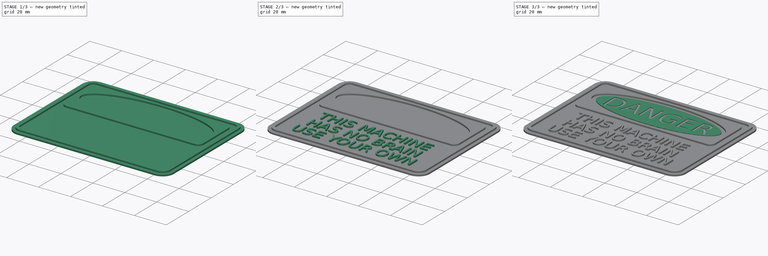
[diagram: build sequence overview — one tinted view per stage of 3, left to right]
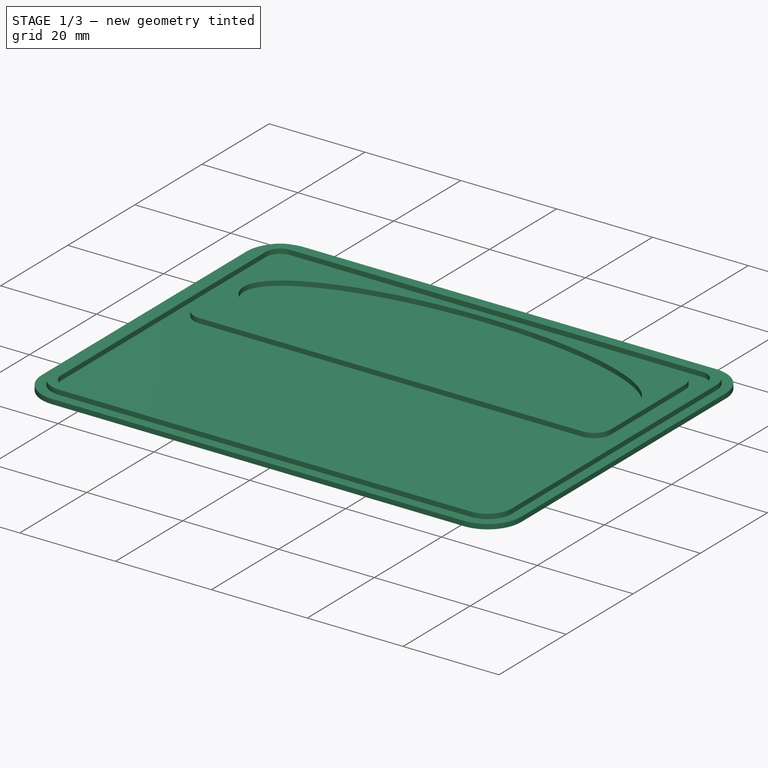
[diagram: stage 1 of 3 — iso view after this stage's code; geometry added in this stage tinted green]
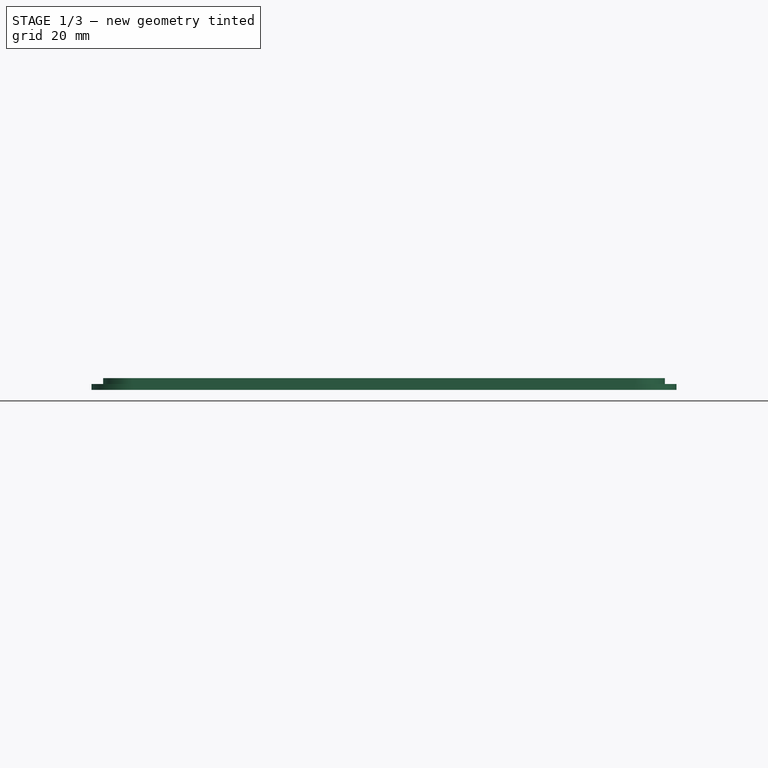
[diagram: stage 1 of 3 — front view after this stage's code; geometry added in this stage tinted green]
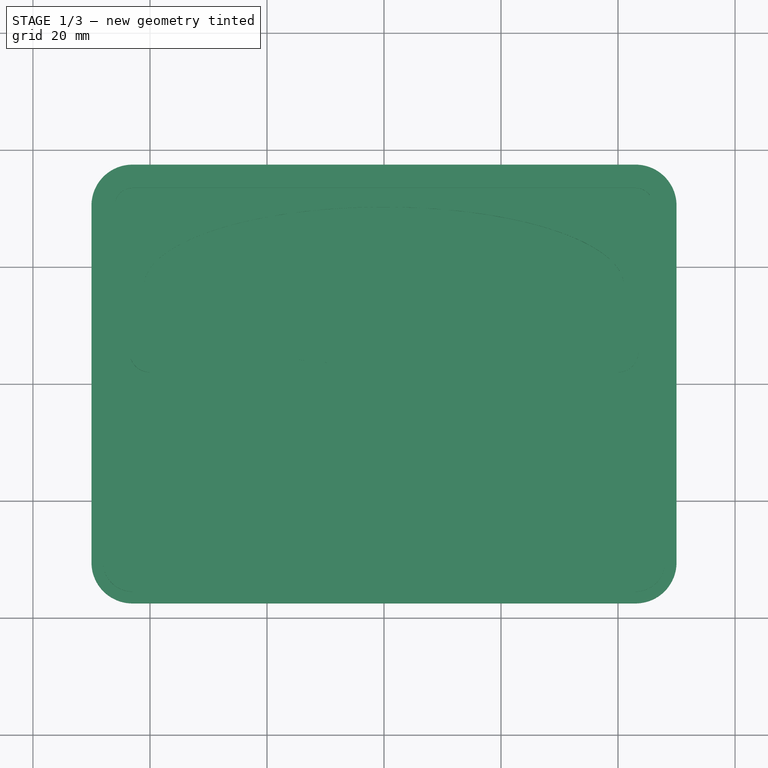
[diagram: stage 1 of 3 — top view after this stage's code; geometry added in this stage tinted green]
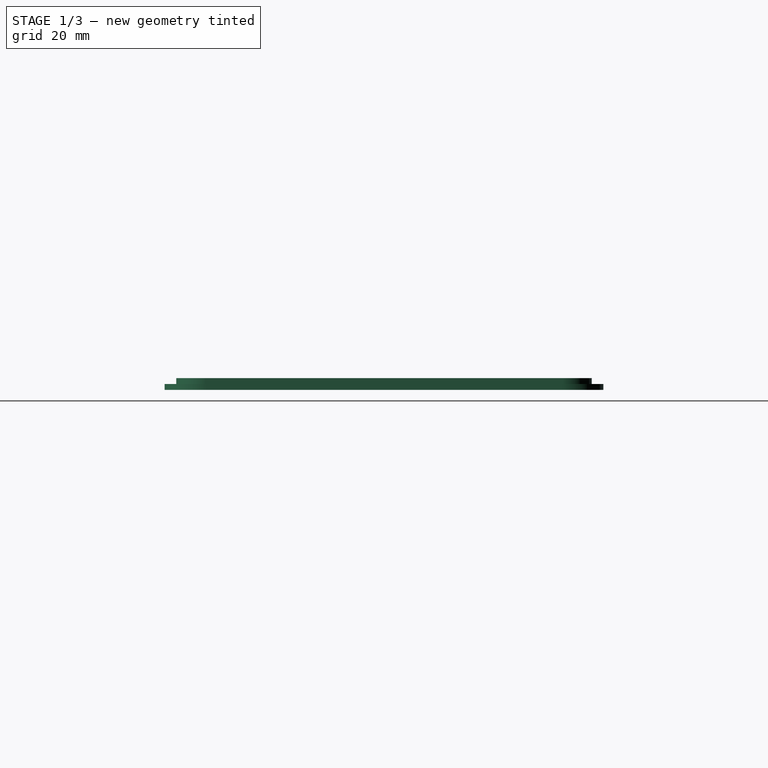
[diagram: stage 1 of 3 — right view after this stage's code; geometry added in this stage tinted green]
FCSTD DOCUMENT  (FreeCAD 1.1R)
Label: this-machine-has-no-brain
License: All rights reserved
LicenseURL: https://en.wikipedia.org/wiki/All_rights_reserved
objects: PartDesign::Pad×6, Part::Part2DObjectPython×4, Sketcher::SketchObject×3, App::Point×1, PartDesign::Pocket×1, PartDesign::Body×1
note: 32 computed .brp shape members not serialized (recipe doc carries the construction recipe); baked Part::Feature solids carry a one-line shape summary decoded from their .brp

FEATURE [App::Point] Origin001
  Role = Origin
FEATURE [Sketcher::SketchObject] Sketch
  ArcFitTolerance = 1e-06
  AttachmentSupport = -> [Origin]
  ExternalTypes = [0]
  FullyConstrained = true
  MakeInternals = false
  MapMode = 5
  sketch-geometry (12):
    g0: LineSegment StartX=-50 StartY=30.5 StartZ=0 EndX=-50 EndY=-30.5 EndZ=0
    g1: LineSegment StartX=-43 StartY=-37.5 StartZ=0 EndX=43 EndY=-37.5 EndZ=0
    g2: LineSegment StartX=50 StartY=-30.5 StartZ=0 EndX=50 EndY=30.5 EndZ=0
    g3: LineSegment StartX=43 StartY=37.5 StartZ=0 EndX=-43 EndY=37.5 EndZ=0
    g4: ArcOfCircle CenterX=-43 CenterY=30.5 CenterZ=0 NormalX=0 NormalY=0 NormalZ=1 AngleXU=0 Radius=7 StartAngle=1.5708 EndAngle=3.14159
    g5: GeomPoint [constr] X=-50 Y=37.5 Z=0
    g6: ArcOfCircle CenterX=43 CenterY=30.5 CenterZ=0 NormalX=0 NormalY=0 NormalZ=1 AngleXU=0 Radius=7 StartAngle=0 EndAngle=1.5708
    g7: GeomPoint [constr] X=50 Y=37.5 Z=0
    g8: ArcOfCircle CenterX=43 CenterY=-30.5 CenterZ=0 NormalX=0 NormalY=0 NormalZ=1 AngleXU=0 Radius=7 StartAngle=4.71239 EndAngle=6.28319
    g9: GeomPoint [constr] X=50 Y=-37.5 Z=0
    g10: ArcOfCircle CenterX=-43 CenterY=-30.5 CenterZ=0 NormalX=0 NormalY=0 NormalZ=1 AngleXU=0 Radius=7 StartAngle=3.14159 EndAngle=4.71239
    g11: GeomPoint [constr] X=-50 Y=-37.5 Z=0
  constraints (23):
    c: Symmetric(g9,g7,g-1)
    c: Symmetric(g11,g9,g-2)
    c: PointOnObject(g5,g0)
    c: PointOnObject(g5,g3)
    c: Tangent(g0,g4) = -1.5708
    c: Tangent(g3,g4) = -1.5708
    c: PointOnObject(g7,g2)
    c: PointOnObject(g7,g3)
    c: Tangent(g2,g6) = -1.5708
    c: Tangent(g3,g6) = -1.5708
    c: PointOnObject(g9,g1)
    c: Tangent(g1,g8) = -1.5708
    c: Tangent(g2,g8) = -1.5708
    c: PointOnObject(g11,g0)
    c: PointOnObject(g11,g1)
    c: Tangent(g0,g10) = -1.5708
    c: Tangent(g1,g10) = -1.5708
    c: DistanceX(g11,g9) = 100
    c: DistanceY(g11,g5) = 75
    c: DistanceY(g0,g0) = 61
    c: Symmetric(g2,g2,g-1)
    c: Symmetric(g3,g3,g-2)
    c: Symmetric(g0,g0,g-1)
FEATURE [PartDesign::Pad] Pad  label="main"
  Direction = (0,0,1)
  Length = 1
  Length2 = 10
  Profile = -> Sketch
  ReferenceAxis = -> Sketch [N_Axis]
  Refine = true
  SideType = 0
  Suppressed = false
  Type = 0
  Type2 = 0
FEATURE [Sketcher::SketchObject] Sketch001
  ArcFitTolerance = 1e-06
  AttachmentSupport = -> [Origin]
  ExternalTypes = [0]
  FullyConstrained = true
  MakeInternals = false
  MapMode = 5
  sketch-geometry (41):
    g0: LineSegment StartX=-46 StartY=30.5 StartZ=0 EndX=-46 EndY=-30.5 EndZ=0
    g1: LineSegment StartX=-43 StartY=-33.5 StartZ=0 EndX=43 EndY=-33.5 EndZ=0
    g2: LineSegment StartX=46 StartY=-30.5 StartZ=0 EndX=46 EndY=30.5 EndZ=0
    g3: LineSegment StartX=43 StartY=33.5 StartZ=0 EndX=-43 EndY=33.5 EndZ=0
    g4: ArcOfCircle CenterX=-43 CenterY=30.5 CenterZ=0 NormalX=0 NormalY=0 NormalZ=1 AngleXU=0 Radius=3 StartAngle=1.5708 EndAngle=3.14159
    g5: GeomPoint [constr] X=-46 Y=33.5 Z=0
    g6: ArcOfCircle CenterX=43 CenterY=30.5 CenterZ=0 NormalX=0 NormalY=0 NormalZ=1 AngleXU=0 Radius=3 StartAngle=0 EndAngle=1.5708
    g7: GeomPoint [constr] X=46 Y=33.5 Z=0
    g8: ArcOfCircle CenterX=43 CenterY=-30.5 CenterZ=0 NormalX=0 NormalY=0 NormalZ=1 AngleXU=0 Radius=3 StartAngle=4.71239 EndAngle=6.28319
    g9: GeomPoint [constr] X=46 Y=-33.5 Z=0
    g10: ArcOfCircle CenterX=-43 CenterY=-30.5 CenterZ=0 NormalX=0 NormalY=0 NormalZ=1 AngleXU=0 Radius=3 StartAngle=3.14159 EndAngle=4.71239
    g11: GeomPoint [constr] X=-46 Y=-33.5 Z=0
    g12: LineSegment StartX=-48 StartY=30.5 StartZ=0 EndX=-48 EndY=-30.5 EndZ=0
    g13: LineSegment StartX=-43 StartY=-35.5 StartZ=0 EndX=43 EndY=-35.5 EndZ=0
    g14: LineSegment StartX=48 StartY=-30.5 StartZ=0 EndX=48 EndY=30.5 EndZ=0
    g15: LineSegment StartX=43 StartY=35.5 StartZ=0 EndX=-43 EndY=35.5 EndZ=0
    g16: ArcOfCircle CenterX=-43 CenterY=30.5 CenterZ=0 NormalX=0 NormalY=0 NormalZ=1 AngleXU=0 Radius=5 StartAngle=1.5708 EndAngle=3.14159
    g17: GeomPoint [constr] X=-48 Y=35.5 Z=0
    g18: ArcOfCircle CenterX=43 CenterY=30.5 CenterZ=0 NormalX=0 NormalY=0 NormalZ=1 AngleXU=0 Radius=5 StartAngle=0 EndAngle=1.5708
    g19: GeomPoint [constr] X=48 Y=35.5 Z=0
    g20: ArcOfCircle CenterX=43 CenterY=-30.5 CenterZ=0 NormalX=0 NormalY=0 NormalZ=1 AngleXU=0 Radius=5 StartAngle=4.71239 EndAngle=6.28319
    g21: GeomPoint [constr] X=48 Y=-35.5 Z=0
    g22: ArcOfCircle CenterX=-43 CenterY=-30.5 CenterZ=0 NormalX=0 NormalY=0 NormalZ=1 AngleXU=0 Radius=5 StartAngle=3.14159 EndAngle=4.71239
    g23: GeomPoint [constr] X=-48 Y=-35.5 Z=0
    g24: LineSegment StartX=43.5 StartY=5.5 StartZ=0 EndX=43.5 EndY=27.5 EndZ=0
    g25: LineSegment StartX=40 StartY=31 StartZ=0 EndX=-40 EndY=31 EndZ=0
    g26: LineSegment StartX=-43.5 StartY=27.5 StartZ=0 EndX=-43.5 EndY=5.5 EndZ=0
    g27: LineSegment StartX=-40 StartY=2 StartZ=0 EndX=40 EndY=2 EndZ=0
    g28: ArcOfCircle CenterX=-40 CenterY=27.5 CenterZ=0 NormalX=0 NormalY=0 NormalZ=1 AngleXU=0 Radius=3.5 StartAngle=1.5708 EndAngle=3.14159
    g29: GeomPoint [constr] X=-43.5 Y=31 Z=0
    g30: ArcOfCircle CenterX=-40 CenterY=5.5 CenterZ=0 NormalX=0 NormalY=0 NormalZ=1 AngleXU=0 Radius=3.5 StartAngle=3.14159 EndAngle=4.71239
    g31: GeomPoint [constr] X=-43.5 Y=2 Z=0
    g32: ArcOfCircle CenterX=40 CenterY=5.5 CenterZ=0 NormalX=0 NormalY=0 NormalZ=1 AngleXU=0 Radius=3.5 StartAngle=4.71239 EndAngle=6.28319
    g33: GeomPoint [constr] X=43.5 Y=2 Z=0
    g34: ArcOfCircle CenterX=40 CenterY=27.5 CenterZ=0 NormalX=0 NormalY=0 NormalZ=1 AngleXU=0 Radius=3.5 StartAngle=2e-16 EndAngle=1.5708
    g35: GeomPoint [constr] X=43.5 Y=31 Z=0
    g36: Ellipse CenterX=-2e-15 CenterY=16.75 CenterZ=0 NormalX=0 NormalY=0 NormalZ=1 MajorRadius=41 MinorRadius=13.5 AngleXU=-3.14159
    g37: LineSegment [constr] StartX=-41 StartY=16.75 StartZ=0 EndX=41 EndY=16.75 EndZ=0
    g38: LineSegment [constr] StartX=-2e-15 StartY=3.25 StartZ=0 EndX=-2e-15 EndY=30.25 EndZ=0
    g39: GeomPoint [constr] X=-38.7137 Y=16.75 Z=0
    g40: GeomPoint [constr] X=38.7137 Y=16.75 Z=0
  constraints (78):
    c: Symmetric(g9,g7,g-1)
    c: Symmetric(g11,g9,g-2)
    c: PointOnObject(g5,g0)
    c: PointOnObject(g5,g3)
    c: Tangent(g0,g4) = -1.5708
    c: Tangent(g3,g4) = -1.5708
    c: PointOnObject(g7,g2)
    c: PointOnObject(g7,g3)
    c: Tangent(g2,g6) = -1.5708
    c: Tangent(g3,g6) = -1.5708
    c: PointOnObject(g9,g1)
    c: Tangent(g1,g8) = -1.5708
    c: Tangent(g2,g8) = -1.5708
    c: PointOnObject(g11,g0)
    c: PointOnObject(g11,g1)
    c: Tangent(g0,g10) = -1.5708
    c: Tangent(g1,g10) = -1.5708
    c: DistanceX(g11,g9) = 92
    c: DistanceY(g11,g5) = 67
    c: DistanceY(g0,g0) = 61
    c: Symmetric(g2,g2,g-1)
    c: Symmetric(g3,g3,g-2)
    c: Symmetric(g0,g0,g-1)
    c: Symmetric(g21,g19,g-1)
    c: Symmetric(g23,g21,g-2)
    c: PointOnObject(g17,g12)
    c: PointOnObject(g17,g15)
    c: Tangent(g12,g16) = -1.5708
    c: Tangent(g15,g16) = -1.5708
    c: PointOnObject(g19,g14)
    c: PointOnObject(g19,g15)
    c: Tangent(g14,g18) = -1.5708
    c: Tangent(g15,g18) = -1.5708
    c: PointOnObject(g21,g13)
    c: Tangent(g13,g20) = -1.5708
    c: Tangent(g14,g20) = -1.5708
    c: PointOnObject(g23,g12)
    c: PointOnObject(g23,g13)
    c: Tangent(g12,g22) = -1.5708
    c: Tangent(g13,g22) = -1.5708
    c: DistanceX(g23,g21) = 96
    c: DistanceY(g23,g17) = 71
    c: DistanceY(g12,g12) = 61
    c: Symmetric(g14,g14,g-1)
    c: Symmetric(g15,g15,g-2)
    c: Symmetric(g12,g12,g-1)
    c: Vertical(g24)
    c: Vertical(g26)
    c: Horizontal(g25)
    c: Symmetric(g31,g33,g-2)
    c: DistanceY(g33,g35) = 29
    c: Distance(g-1,g27) = 2
    c: DistanceX(g31,g33) = 87
    c: PointOnObject(g29,g25)
    c: PointOnObject(g29,g26)
    c: Tangent(g25,g28) = -1.5708
    c: Tangent(g26,g28) = -1.5708
    c: PointOnObject(g31,g26)
    c: PointOnObject(g31,g27)
    c: Tangent(g26,g30) = -1.5708
    c: Tangent(g27,g30) = -1.5708
    c: PointOnObject(g33,g24)
    c: PointOnObject(g33,g27)
    c: Tangent(g24,g32) = -1.5708
    c: Tangent(g27,g32) = -1.5708
    c: PointOnObject(g35,g24)
    c: PointOnObject(g35,g25)
    c: Tangent(g24,g34) = -1.5708
    c: Tangent(g25,g34) = -1.5708
    c: Equal(g25,g27)
    c: Equal(g24,g26)
    c: DistanceX(g27,g27) = 80
    c: Vertical(g25,g27)
    c: InternalAlignment(g37-g40 -> g36) x4
    c: DistanceX(g37,g37) = 82
    c: DistanceY(g38,g38) = 27
    c: Symmetric(g37,g37,g-2)
    c: DistanceY(g-1,g36) = 16.75
FEATURE [PartDesign::Pad] Pad001  label="Top + Outter"
  BaseFeature = -> Pad
  Direction = (0,0,1)
  Length = 2
  Length2 = 10
  Profile = -> Sketch001
  ReferenceAxis = -> Sketch001 [N_Axis]
  Refine = true
  SideType = 0
  Suppressed = false
  Type = 0
  Type2 = 0
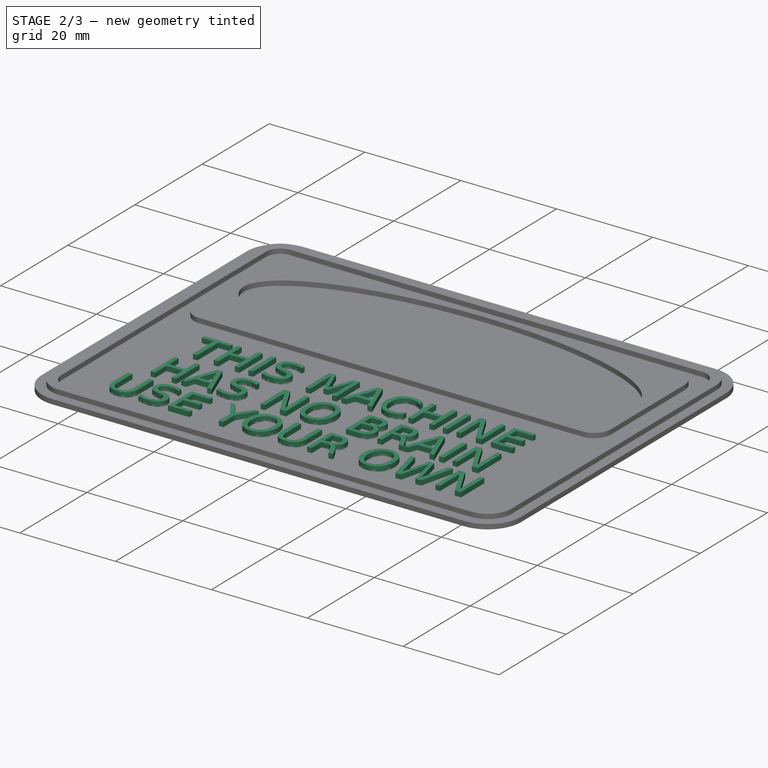
[diagram: stage 2 of 3 — iso view after this stage's code; geometry added in this stage tinted green]
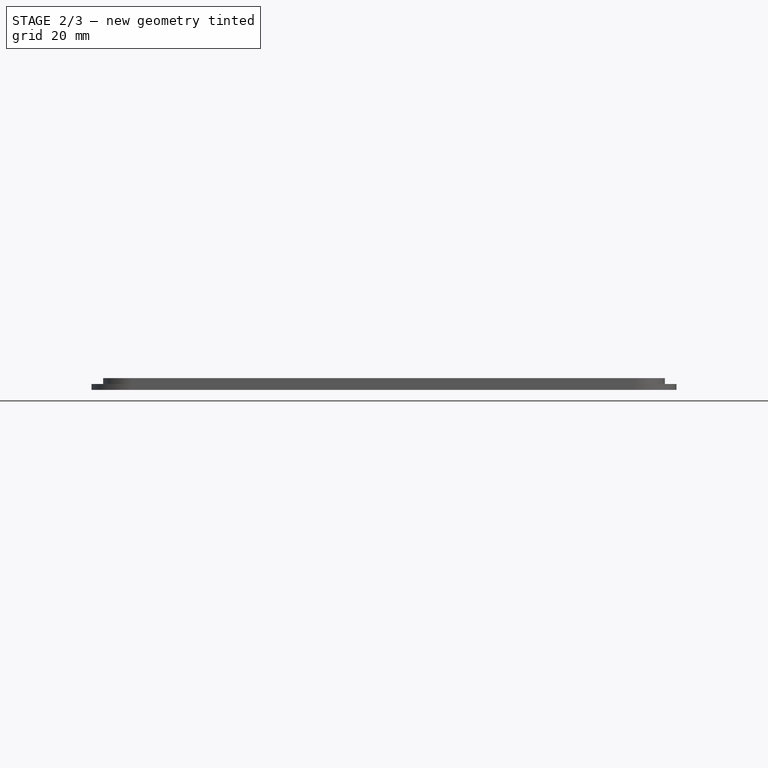
[diagram: stage 2 of 3 — front view after this stage's code; geometry added in this stage tinted green]
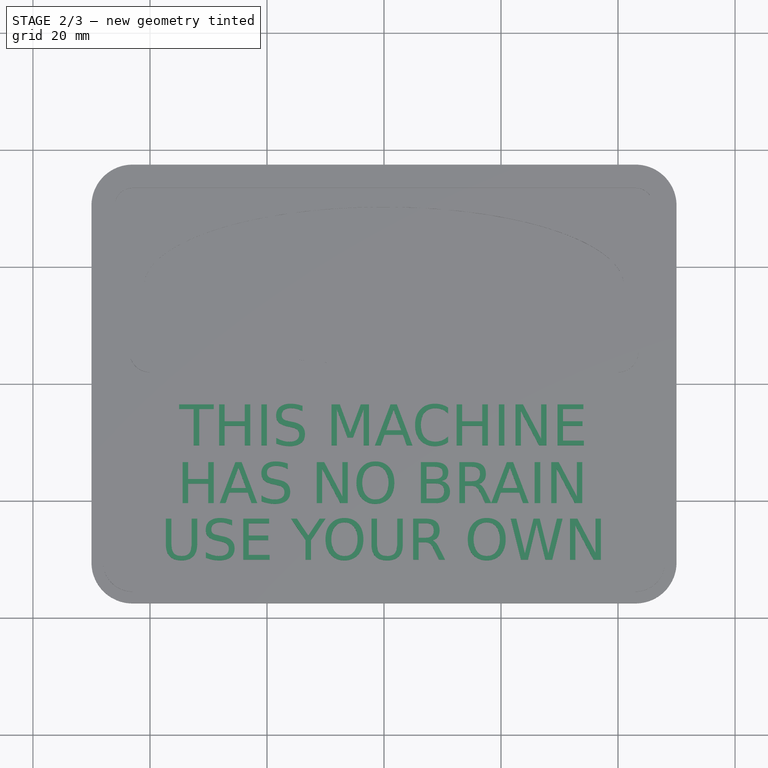
[diagram: stage 2 of 3 — top view after this stage's code; geometry added in this stage tinted green]
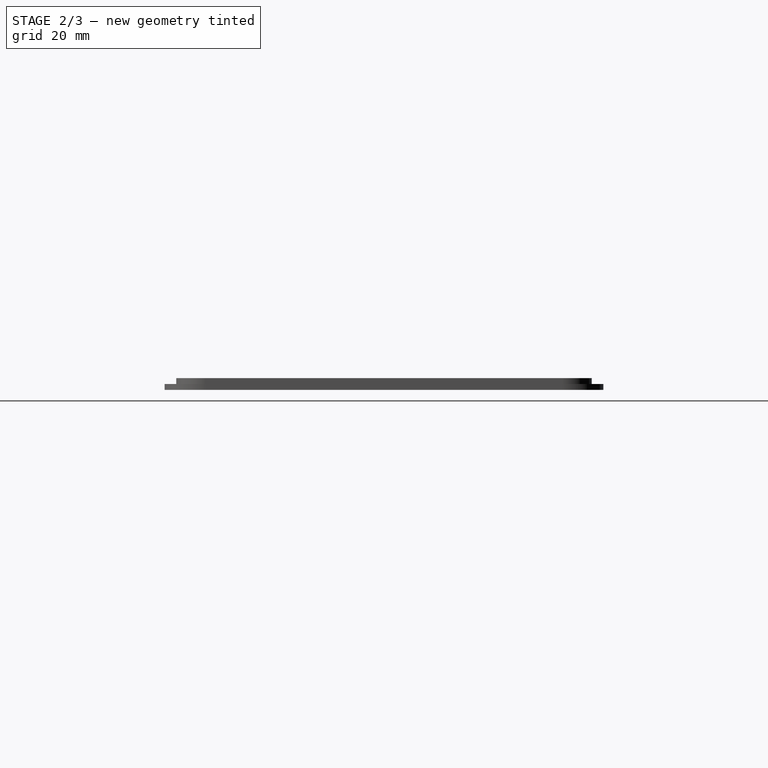
[diagram: stage 2 of 3 — right view after this stage's code; geometry added in this stage tinted green]
FEATURE [Part::Part2DObjectPython] ShapeString  # Draft 2D object (typed FeaturePython)
  FontFile = <path>
  Fuse = false
  Justification = 6
  JustificationReference = 0
  KeepLeftMargin = false
  MakeFace = true
  ObliqueAngle = 0
  Placement = pos=(-31.6401,11.5938,2) rot=(0,0,1;0rad)
  ScaleToSize = true
  Size = 11.25
  String = DANGER
  Tracking = 0
FEATURE [Part::Part2DObjectPython] ShapeString001  # Draft 2D object (typed FeaturePython)
  FontFile = <path>
  Fuse = false
  Justification = 6
  JustificationReference = 0
  KeepLeftMargin = false
  MakeFace = true
  ObliqueAngle = 0
  Placement = pos=(-35.0151,-10.5052,0) rot=(0,0,1;0rad)
  ScaleToSize = true
  Size = 7
  String = THIS MACHINE
  Tracking = 0
FEATURE [Part::Part2DObjectPython] ShapeString002  # Draft 2D object (typed FeaturePython)
  FontFile = <path>
  Fuse = false
  Justification = 6
  JustificationReference = 0
  KeepLeftMargin = false
  MakeFace = true
  ObliqueAngle = 0
  Placement = pos=(-34.429,-20.374,0) rot=(0,0,1;0rad)
  ScaleToSize = true
  Size = 7
  String = HAS NO BRAIN
  Tracking = 0
FEATURE [Part::Part2DObjectPython] ShapeString003  # Draft 2D object (typed FeaturePython)
  FontFile = <path>
  Fuse = false
  Justification = 6
  JustificationReference = 0
  KeepLeftMargin = false
  MakeFace = true
  ObliqueAngle = 0
  Placement = pos=(-37.2863,-30.0368,0) rot=(0,0,1;0rad)
  ScaleToSize = true
  Size = 7
  String = USE YOUR OWN
  Tracking = 0
FEATURE [PartDesign::Pad] Pad002  label="Text line 3"
  BaseFeature = -> Pad001
  Direction = (0,0,1)
  Length = 2
  Length2 = 10
  Profile = -> ShapeString003
  ReferenceAxis = -> ShapeString003 [N_Axis]
  Refine = true
  SideType = 0
  Suppressed = false
  Type = 0
  Type2 = 0
FEATURE [PartDesign::Pad] Pad003  label="Text line 2"
  BaseFeature = -> Pad002
  Direction = (0,0,1)
  Length = 2
  Length2 = 10
  Profile = -> ShapeString002
  ReferenceAxis = -> ShapeString002 [N_Axis]
  Refine = true
  SideType = 0
  Suppressed = false
  Type = 0
  Type2 = 0
FEATURE [PartDesign::Pad] Pad004  label="Text line 1"
  BaseFeature = -> Pad003
  Direction = (0,0,1)
  Length = 2
  Length2 = 10
  Profile = -> ShapeString001
  ReferenceAxis = -> ShapeString001 [N_Axis]
  Refine = true
  SideType = 0
  Suppressed = false
  Type = 0
  Type2 = 0
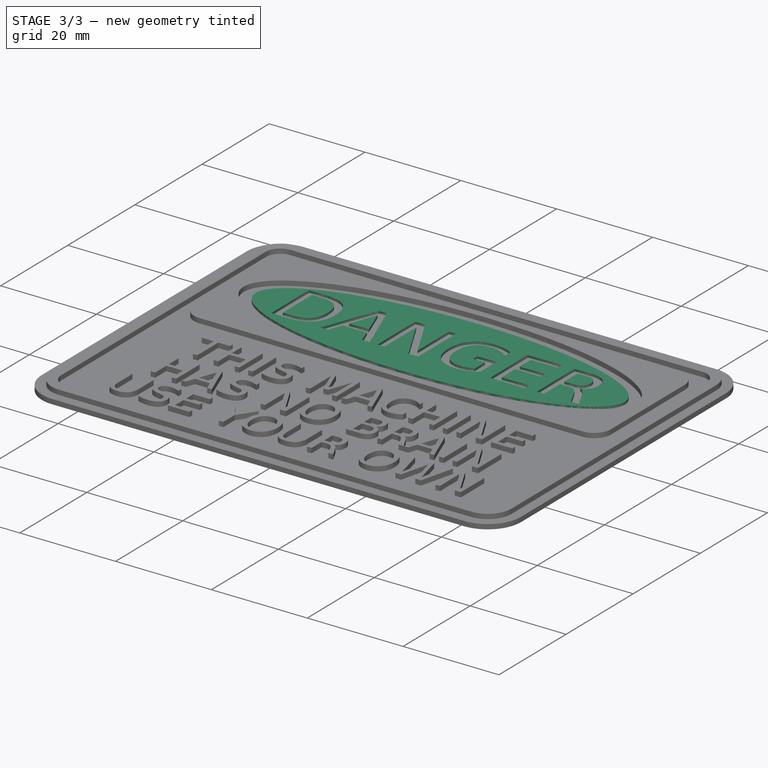
[diagram: stage 3 of 3 — iso view after this stage's code; geometry added in this stage tinted green]
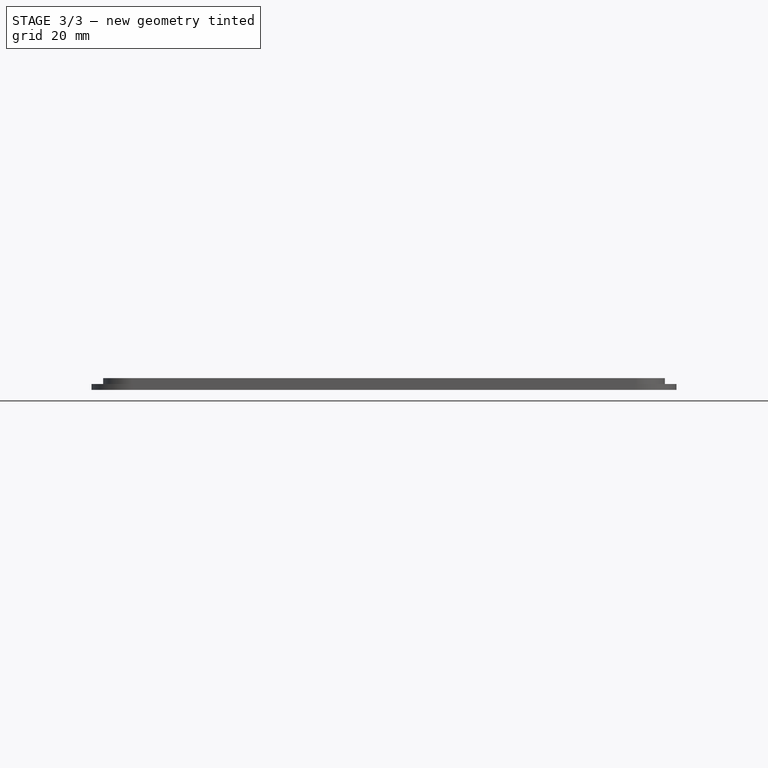
[diagram: stage 3 of 3 — front view after this stage's code; geometry added in this stage tinted green]
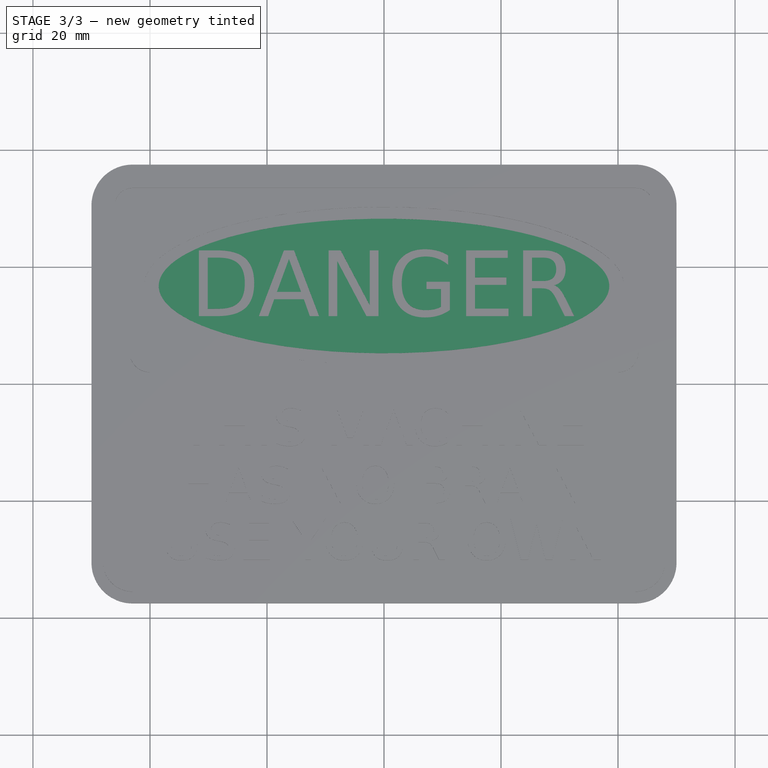
[diagram: stage 3 of 3 — top view after this stage's code; geometry added in this stage tinted green]
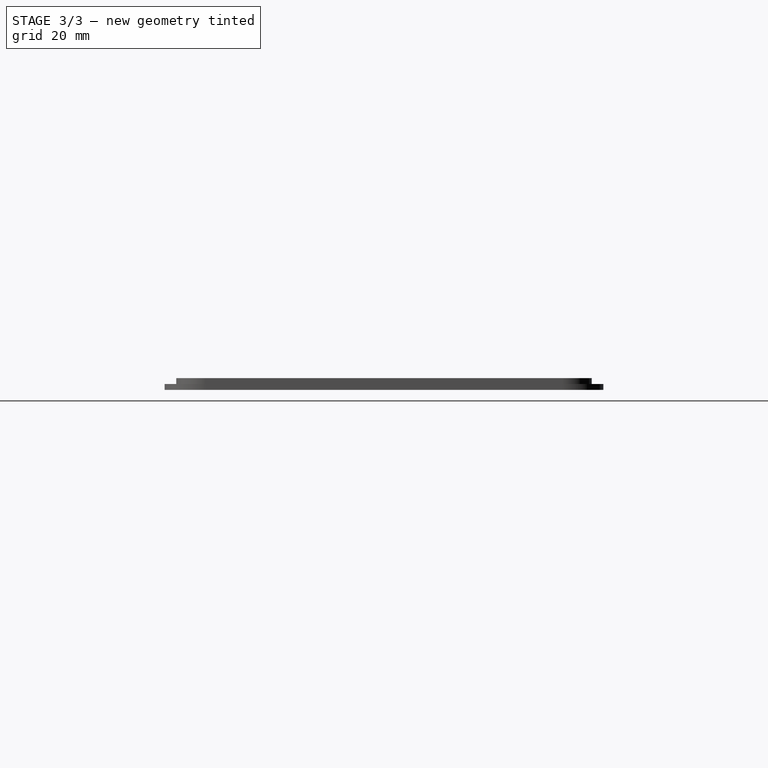
[diagram: stage 3 of 3 — right view after this stage's code; geometry added in this stage tinted green]
FEATURE [Sketcher::SketchObject] Sketch002
  ArcFitTolerance = 1e-06
  AttachmentSupport = -> [Origin]
  ExternalTypes = [0]
  FullyConstrained = true
  MakeInternals = false
  MapMode = 5
  sketch-geometry (5):
    g0: Ellipse CenterX=0 CenterY=16.75 CenterZ=0 NormalX=0 NormalY=0 NormalZ=1 MajorRadius=38.5 MinorRadius=11.5 AngleXU=-3.14159
    g1: LineSegment [constr] StartX=-38.5 StartY=16.75 StartZ=0 EndX=38.5 EndY=16.75 EndZ=0
    g2: LineSegment [constr] StartX=0 StartY=5.25 StartZ=0 EndX=0 EndY=28.25 EndZ=0
    g3: GeomPoint [constr] X=-36.7423 Y=16.75 Z=0
    g4: GeomPoint [constr] X=36.7423 Y=16.75 Z=0
  constraints (6):
    c: InternalAlignment(g1-g4 -> g0) x4
    c: PointOnObject(g0,g-2)
    c: PointOnObject(g2,g-2)
    c: DistanceX(g1,g1) = 77
    c: DistanceY(g2,g2) = 23
    c: DistanceY(g-1,g0) = 16.75
FEATURE [PartDesign::Pad] Pad005  label="Top Ellipse"
  BaseFeature = -> Pad004
  Direction = (0,0,1)
  Length = 1.5
  Length2 = 10
  Profile = -> Sketch002
  ReferenceAxis = -> Sketch002 [N_Axis]
  Refine = true
  SideType = 0
  Suppressed = false
  Type = 0
  Type2 = 0
FEATURE [PartDesign::Pocket] Pocket  label="Danger text recess"
  BaseFeature = -> Pad005
  Direction = (0,0,-1)
  Length = 1
  Length2 = 5
  Profile = -> ShapeString
  ReferenceAxis = -> ShapeString [N_Axis]
  Refine = true
  SideType = 0
  Suppressed = false
  Type = 0
  Type2 = 0
FEATURE [PartDesign::Body] Body  label="sign"
  AllowCompound = false
  Group = -> [Sketch,Pad,Sketch001,Pad001,ShapeString001,ShapeString002,ShapeString003,Pad002,Pad003,Pad004,Sketch002,Pad005,ShapeString,Pocket]
  Origin = -> Origin
  Tip = -> Pocket
note: 4 file-system paths scrubbed to <path> (originals preserved in the JSON sidecar)
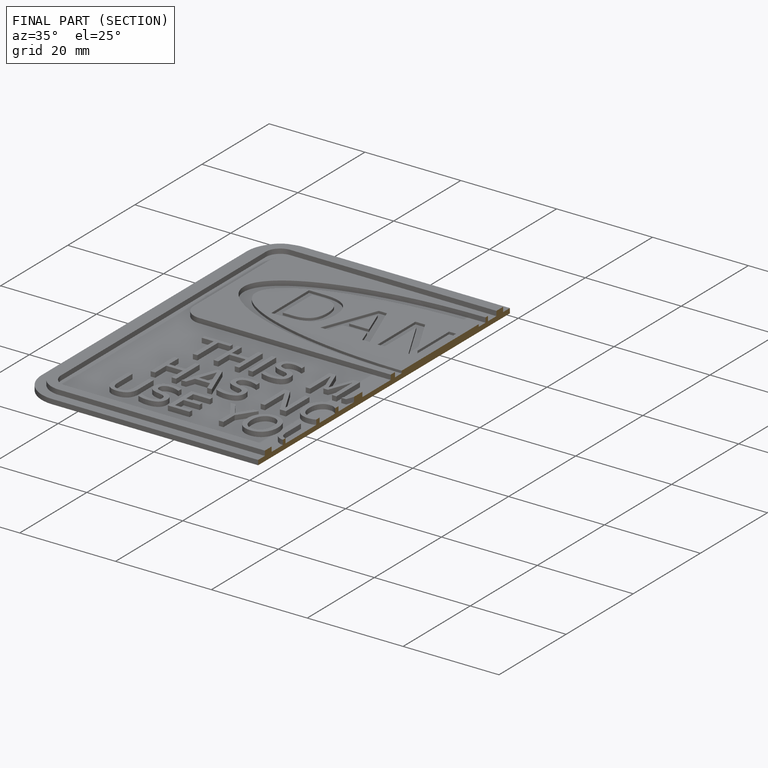
[diagram: finished part — half-section view (interior)]
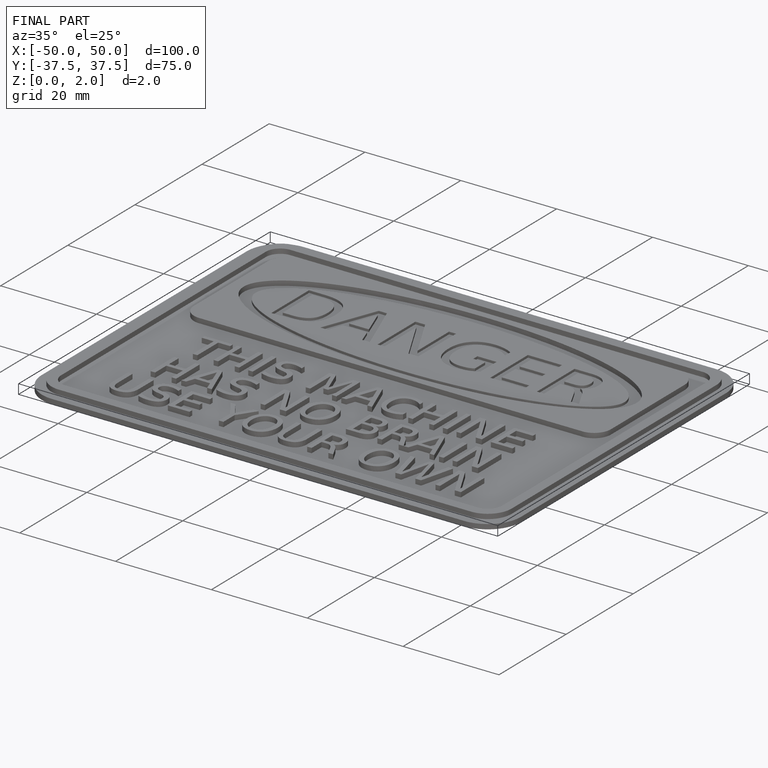
[diagram: finished part — iso view with bounding-box wireframe]
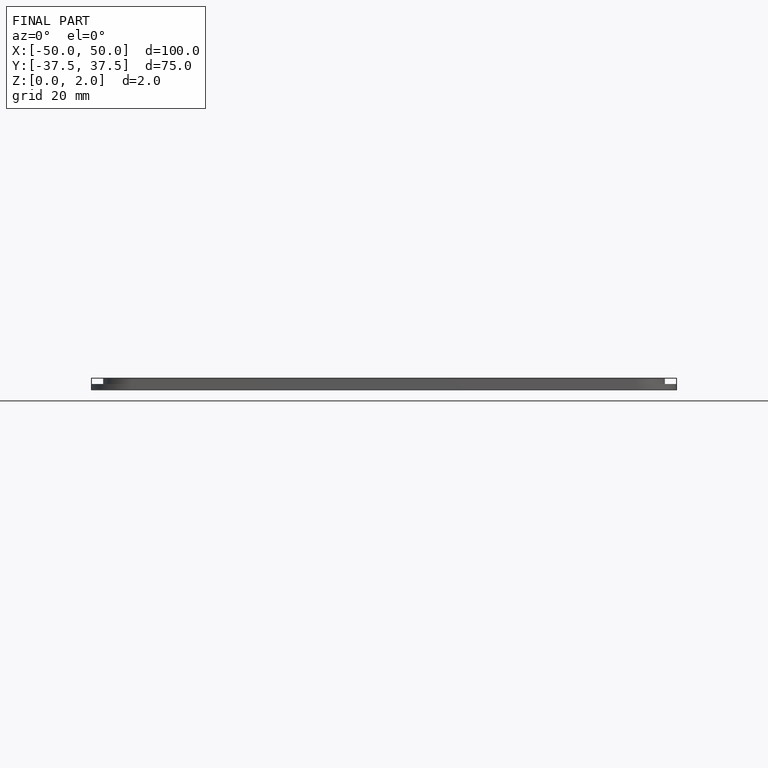
[diagram: finished part — front view with bounding-box wireframe]
